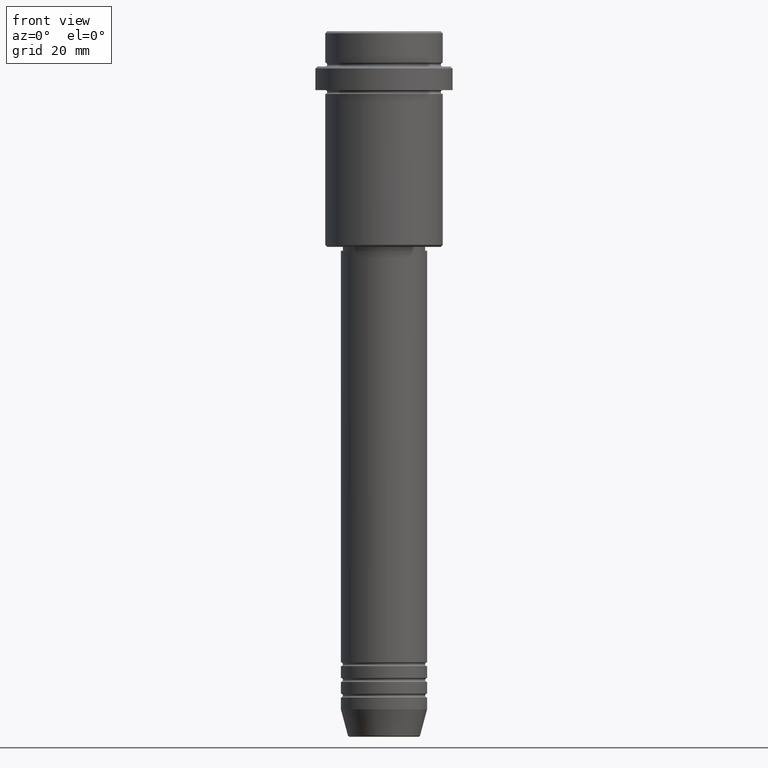
[diagram: clean part render]
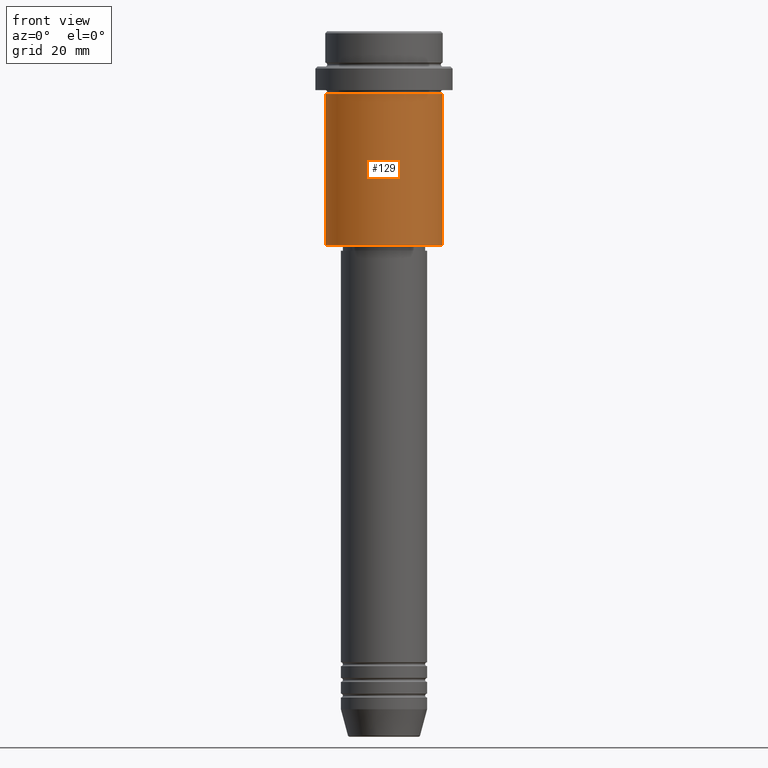
[diagram: same view with one face highlighted and labeled with its STEP entity id]
A machine part, front view. The second image highlights one B-rep face of the part: STEP entity #129.
In plain terms, the highlighted cylindrical surface (partial cylindrical patch) has radius 15 mm, axis along (-0, -0, 1).
Its self-contained STEP definition (entity closure, byte-faithful):
#10 = CIRCLE ( 'NONE', #318, 15.00000000000000000 ) ;
#14 = CIRCLE ( 'NONE', #710, 15.00000000000000178 ) ;
#34 = VECTOR ( 'NONE', #970, 1000.000000000000000 ) ;
#129 = ADVANCED_FACE ( 'NONE', ( #782 ), #765, .T. ) ;
#282 = ORIENTED_EDGE ( 'NONE', *, *, #823, .F. ) ;
#315 = LINE ( 'NONE', #1078, #34 ) ;
#318 = AXIS2_PLACEMENT_3D ( 'NONE', #1045, #816, #1266 ) ;
#321 = CARTESIAN_POINT ( 'NONE',  ( -15.00000000000000000, 1.836970198721029589E-15, -54.50000000000000711 ) ) ;
#353 = DIRECTION ( 'NONE',  ( 1.000000000000000000, 0.000000000000000000, 0.000000000000000000 ) ) ;
#465 = VERTEX_POINT ( 'NONE', #1189 ) ;
#513 = CARTESIAN_POINT ( 'NONE',  ( 15.00000000000000000, 0.000000000000000000, -54.50000000000000711 ) ) ;
#552 = EDGE_LOOP ( 'NONE', ( #282, #607, #803, #1380 ) ) ;
#607 = ORIENTED_EDGE ( 'NONE', *, *, #1170, .T. ) ;
#661 = EDGE_CURVE ( 'NONE', #1194, #901, #1107, .T. ) ;
#710 = AXIS2_PLACEMENT_3D ( 'NONE', #842, #924, #1035 ) ;
#765 = CYLINDRICAL_SURFACE ( 'NONE', #1292, 15.00000000000000000 ) ;
#782 = FACE_OUTER_BOUND ( 'NONE', #552, .T. ) ;
#803 = ORIENTED_EDGE ( 'NONE', *, *, #661, .T. ) ;
#816 = DIRECTION ( 'NONE',  ( -0.000000000000000000, -0.000000000000000000, 1.000000000000000000 ) ) ;
#823 = EDGE_CURVE ( 'NONE', #936, #465, #315, .T. ) ;
#842 = CARTESIAN_POINT ( 'NONE',  ( 0.000000000000000000, 0.000000000000000000, -16.00000000000000000 ) ) ;
#895 = CARTESIAN_POINT ( 'NONE',  ( 15.00000000000000000, 0.000000000000000000, 0.000000000000000000 ) ) ;
#901 = VERTEX_POINT ( 'NONE', #965 ) ;
#924 = DIRECTION ( 'NONE',  ( -0.000000000000000000, -0.000000000000000000, 1.000000000000000000 ) ) ;
#936 = VERTEX_POINT ( 'NONE', #321 ) ;
#965 = CARTESIAN_POINT ( 'NONE',  ( 15.00000000000000178, 0.000000000000000000, -16.00000000000000000 ) ) ;
#970 = DIRECTION ( 'NONE',  ( -0.000000000000000000, -0.000000000000000000, 1.000000000000000000 ) ) ;
#1003 = DIRECTION ( 'NONE',  ( -0.000000000000000000, -0.000000000000000000, 1.000000000000000000 ) ) ;
#1010 = DIRECTION ( 'NONE',  ( -0.000000000000000000, -0.000000000000000000, 1.000000000000000000 ) ) ;
#1035 = DIRECTION ( 'NONE',  ( 1.000000000000000000, 0.000000000000000000, 0.000000000000000000 ) ) ;
#1045 = CARTESIAN_POINT ( 'NONE',  ( 0.000000000000000000, 0.000000000000000000, -54.50000000000000711 ) ) ;
#1078 = CARTESIAN_POINT ( 'NONE',  ( -15.00000000000000000, 1.836970198721029589E-15, 0.000000000000000000 ) ) ;
#1107 = LINE ( 'NONE', #895, #1111 ) ;
#1111 = VECTOR ( 'NONE', #1010, 1000.000000000000000 ) ;
#1117 = CARTESIAN_POINT ( 'NONE',  ( 0.000000000000000000, 0.000000000000000000, 0.000000000000000000 ) ) ;
#1170 = EDGE_CURVE ( 'NONE', #936, #1194, #10, .T. ) ;
#1189 = CARTESIAN_POINT ( 'NONE',  ( -15.00000000000000355, 1.836970198721029983E-15, -16.00000000000000000 ) ) ;
#1194 = VERTEX_POINT ( 'NONE', #513 ) ;
#1263 = EDGE_CURVE ( 'NONE', #465, #901, #14, .T. ) ;
#1266 = DIRECTION ( 'NONE',  ( -1.000000000000000000, 0.000000000000000000, 0.000000000000000000 ) ) ;
#1292 = AXIS2_PLACEMENT_3D ( 'NONE', #1117, #1003, #353 ) ;
#1380 = ORIENTED_EDGE ( 'NONE', *, *, #1263, .F. ) ;